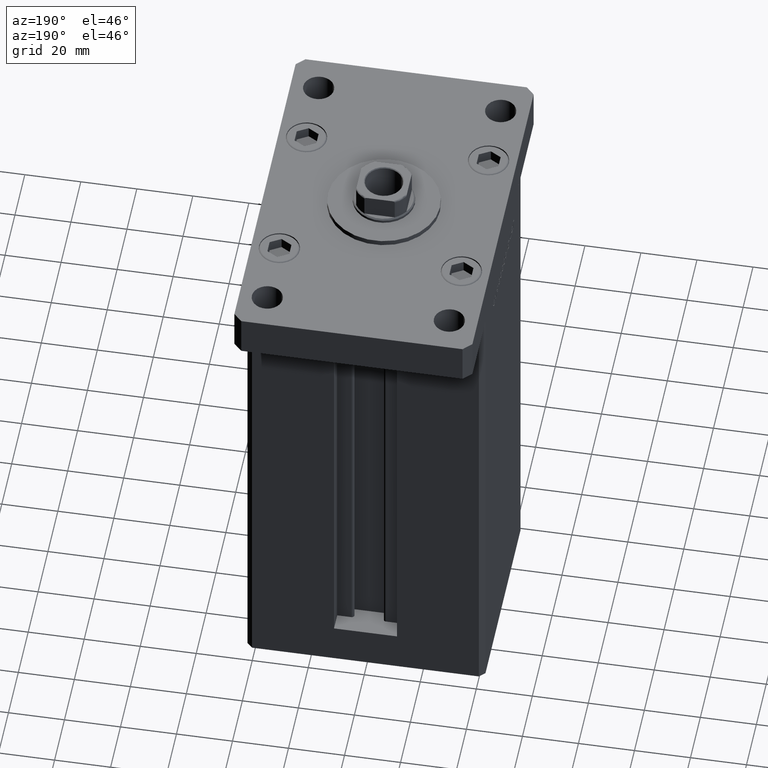
[diagram: clean part render]
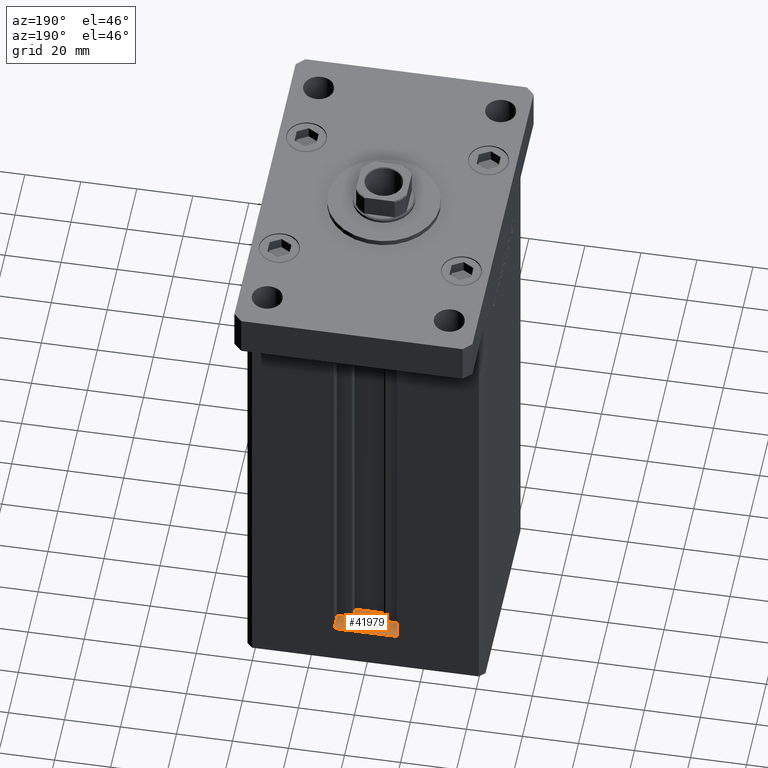
[diagram: same view with one face highlighted and labeled with its STEP entity id]
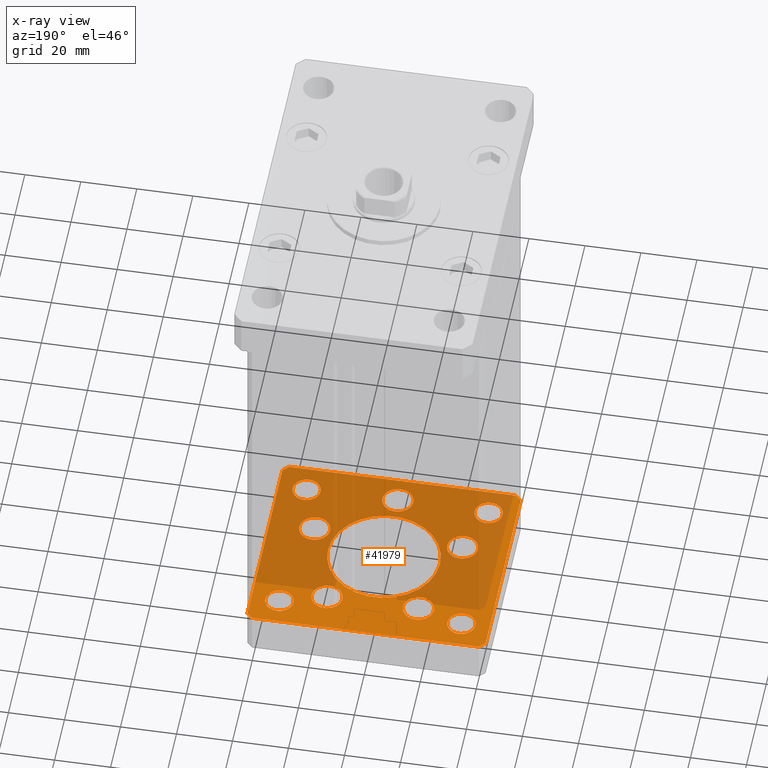
[diagram: x-ray of the same camera — body ghosted, the highlighted face saturated]
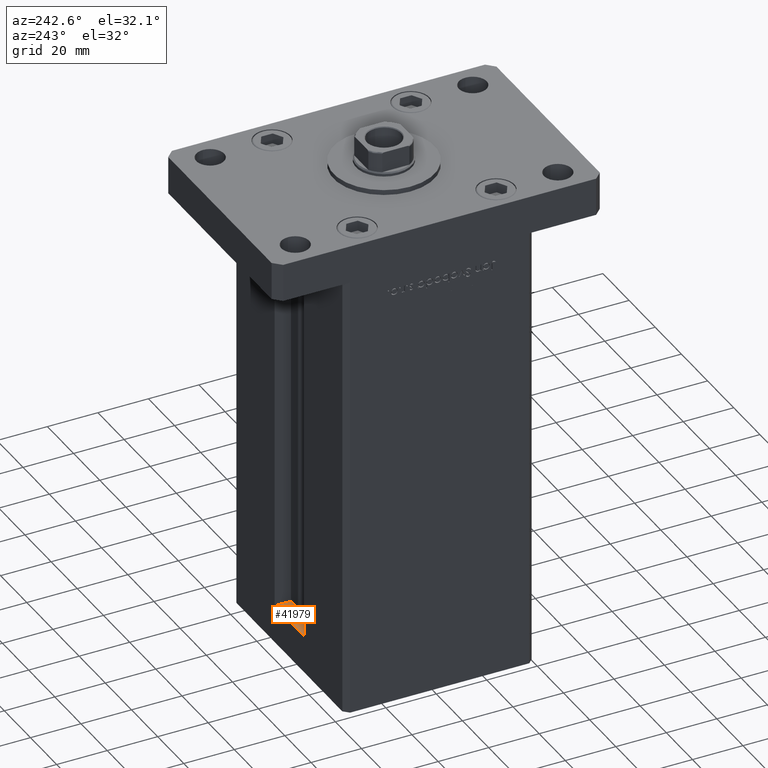
[diagram: same view with one face highlighted and labeled with its STEP entity id]
A machine part, auxiliary view. The second image highlights one B-rep face of the part: STEP entity #41979.
The next image is the same camera in x-ray: the body ghosted, the highlighted face saturated — about 68% of this face is hidden behind the body in this view.
A second angle (auxiliary view) of the same face is appended — the face is thin or edge-on in the first view.
In plain terms, the highlighted planar face has unit normal (0, 0, -1).
Its self-contained STEP definition (entity closure, byte-faithful):
#45 = DIRECTION ( 'NONE',  ( 1.000000000000000000, 0.000000000000000000, 0.000000000000000000 ) ) ;
#463 = VECTOR ( 'NONE', #32890, 1000.000000000000000 ) ;
#609 = CARTESIAN_POINT ( 'NONE',  ( 40.49999999999991473, 37.50000000000000711, -15.00000000000000000 ) ) ;
#1001 = DIRECTION ( 'NONE',  ( 0.000000000000000000, -0.000000000000000000, -1.000000000000000000 ) ) ;
#1236 = VERTEX_POINT ( 'NONE', #27809 ) ;
#1262 = VERTEX_POINT ( 'NONE', #36219 ) ;
#1341 = CIRCLE ( 'NONE', #52407, 4.999999999999997335 ) ;
#1360 = DIRECTION ( 'NONE',  ( 0.000000000000000000, -0.000000000000000000, -1.000000000000000000 ) ) ;
#1511 = EDGE_CURVE ( 'NONE', #15772, #45604, #25926, .T. ) ;
#1653 = DIRECTION ( 'NONE',  ( 9.773090005503140331E-17, -1.000000000000000000, 0.000000000000000000 ) ) ;
#1685 = FACE_OUTER_BOUND ( 'NONE', #51312, .T. ) ;
#1842 = AXIS2_PLACEMENT_3D ( 'NONE', #50079, #1001, #50338 ) ;
#1948 = FACE_BOUND ( 'NONE', #39887, .T. ) ;
#2063 = ORIENTED_EDGE ( 'NONE', *, *, #46813, .F. ) ;
#2093 = EDGE_LOOP ( 'NONE', ( #27340, #2248 ) ) ;
#2118 = EDGE_CURVE ( 'NONE', #11091, #19289, #32029, .T. ) ;
#2248 = ORIENTED_EDGE ( 'NONE', *, *, #4916, .F. ) ;
#2335 = AXIS2_PLACEMENT_3D ( 'NONE', #34175, #1360, #30641 ) ;
#2701 = DIRECTION ( 'NONE',  ( 1.000000000000000000, 0.000000000000000000, 0.000000000000000000 ) ) ;
#2919 = VERTEX_POINT ( 'NONE', #42880 ) ;
#3134 = VERTEX_POINT ( 'NONE', #16542 ) ;
#3207 = DIRECTION ( 'NONE',  ( 0.000000000000000000, 0.000000000000000000, 1.000000000000000000 ) ) ;
#3214 = ORIENTED_EDGE ( 'NONE', *, *, #22519, .F. ) ;
#3546 = AXIS2_PLACEMENT_3D ( 'NONE', #11108, #15434, #2701 ) ;
#3640 = DIRECTION ( 'NONE',  ( 0.000000000000000000, 0.000000000000000000, 1.000000000000000000 ) ) ;
#3714 = ORIENTED_EDGE ( 'NONE', *, *, #20424, .F. ) ;
#3745 = CIRCLE ( 'NONE', #8206, 5.000000000000000888 ) ;
#3778 = DIRECTION ( 'NONE',  ( 1.000000000000000000, 0.000000000000000000, 0.000000000000000000 ) ) ;
#3962 = CIRCLE ( 'NONE', #34247, 5.500000000000001776 ) ;
#4052 = DIRECTION ( 'NONE',  ( 0.000000000000000000, -0.000000000000000000, -1.000000000000000000 ) ) ;
#4135 = ORIENTED_EDGE ( 'NONE', *, *, #32211, .F. ) ;
#4422 = DIRECTION ( 'NONE',  ( -1.000000000000000000, -3.426614273534436165E-16, 0.000000000000000000 ) ) ;
#4470 = CIRCLE ( 'NONE', #18302, 4.999999999999997335 ) ;
#4708 = VERTEX_POINT ( 'NONE', #17617 ) ;
#4916 = EDGE_CURVE ( 'NONE', #6548, #25707, #18232, .T. ) ;
#4924 = DIRECTION ( 'NONE',  ( 0.000000000000000000, -0.000000000000000000, -1.000000000000000000 ) ) ;
#5157 = CARTESIAN_POINT ( 'NONE',  ( 21.82291334290542650, 22.75000000000000000, -15.00000000000000000 ) ) ;
#5181 = DIRECTION ( 'NONE',  ( 0.000000000000000000, -0.000000000000000000, -1.000000000000000000 ) ) ;
#5273 = ORIENTED_EDGE ( 'NONE', *, *, #33752, .F. ) ;
#5285 = DIRECTION ( 'NONE',  ( 0.000000000000000000, -0.000000000000000000, -1.000000000000000000 ) ) ;
#5337 = DIRECTION ( 'NONE',  ( 0.7071067811865463515, -0.7071067811865487940, 0.000000000000000000 ) ) ;
#5522 = CIRCLE ( 'NONE', #28004, 5.000000000000000888 ) ;
#5847 = DIRECTION ( 'NONE',  ( 1.000000000000000000, 1.713307136767217096E-16, 0.000000000000000000 ) ) ;
#5976 = DIRECTION ( 'NONE',  ( 1.000000000000000000, 0.000000000000000000, 0.000000000000000000 ) ) ;
#6149 = EDGE_LOOP ( 'NONE', ( #53526, #38176 ) ) ;
#6398 = DIRECTION ( 'NONE',  ( -1.000000000000000000, 0.000000000000000000, 0.000000000000000000 ) ) ;
#6415 = EDGE_LOOP ( 'NONE', ( #29234, #31128 ) ) ;
#6548 = VERTEX_POINT ( 'NONE', #37783 ) ;
#6576 = FACE_BOUND ( 'NONE', #6149, .T. ) ;
#7111 = EDGE_CURVE ( 'NONE', #29571, #1262, #18037, .T. ) ;
#7415 = VERTEX_POINT ( 'NONE', #14447 ) ;
#7624 = CIRCLE ( 'NONE', #22322, 5.499999999999998224 ) ;
#7795 = EDGE_CURVE ( 'NONE', #2919, #3134, #4470, .T. ) ;
#8184 = AXIS2_PLACEMENT_3D ( 'NONE', #38249, #13320, #29053 ) ;
#8196 = EDGE_CURVE ( 'NONE', #1262, #7415, #27804, .T. ) ;
#8206 = AXIS2_PLACEMENT_3D ( 'NONE', #42938, #27468, #35613 ) ;
#8842 = CARTESIAN_POINT ( 'NONE',  ( -5.499999999999996447, -28.00000000000000000, -15.00000000000000000 ) ) ;
#9046 = CARTESIAN_POINT ( 'NONE',  ( 40.49999999999991473, 37.50000000000000711, -15.00000000000000000 ) ) ;
#9478 = DIRECTION ( 'NONE',  ( 1.000000000000000000, 0.000000000000000000, 0.000000000000000000 ) ) ;
#9549 = EDGE_CURVE ( 'NONE', #41829, #48282, #25274, .T. ) ;
#10119 = CIRCLE ( 'NONE', #2335, 5.500000000000000000 ) ;
#10130 = ORIENTED_EDGE ( 'NONE', *, *, #29059, .F. ) ;
#10165 = CARTESIAN_POINT ( 'NONE',  ( 32.50000000000000000, 27.49999999999999645, -15.00000000000000000 ) ) ;
#10395 = EDGE_LOOP ( 'NONE', ( #5273, #10130 ) ) ;
#10523 = DIRECTION ( 'NONE',  ( -0.7071067811865474617, 0.7071067811865474617, 0.000000000000000000 ) ) ;
#11012 = DIRECTION ( 'NONE',  ( 0.7071067811865474617, 0.7071067811865474617, 0.000000000000000000 ) ) ;
#11091 = VERTEX_POINT ( 'NONE', #5157 ) ;
#11108 = CARTESIAN_POINT ( 'NONE',  ( -16.32291334290543006, 22.74999999999999645, -15.00000000000000000 ) ) ;
#11315 = VERTEX_POINT ( 'NONE', #28681 ) ;
#11525 = EDGE_CURVE ( 'NONE', #28796, #11315, #25235, .T. ) ;
#11663 = VECTOR ( 'NONE', #5337, 1000.000000000000000 ) ;
#12462 = AXIS2_PLACEMENT_3D ( 'NONE', #42316, #5181, #5976 ) ;
#12560 = DIRECTION ( 'NONE',  ( 0.000000000000000000, -0.000000000000000000, -1.000000000000000000 ) ) ;
#12573 = CARTESIAN_POINT ( 'NONE',  ( 32.50000000000000000, -27.49999999999999645, -15.00000000000000000 ) ) ;
#13320 = DIRECTION ( 'NONE',  ( -0.000000000000000000, -0.000000000000000000, -1.000000000000000000 ) ) ;
#13400 = ORIENTED_EDGE ( 'NONE', *, *, #29933, .T. ) ;
#13510 = ORIENTED_EDGE ( 'NONE', *, *, #8196, .F. ) ;
#13670 = CIRCLE ( 'NONE', #24934, 5.000000000000004441 ) ;
#13891 = VERTEX_POINT ( 'NONE', #22195 ) ;
#13895 = FACE_BOUND ( 'NONE', #28188, .T. ) ;
#14407 = AXIS2_PLACEMENT_3D ( 'NONE', #51560, #23090, #34235 ) ;
#14447 = CARTESIAN_POINT ( 'NONE',  ( 42.50000000000000711, -35.50000000000000000, -15.00000000000000000 ) ) ;
#14494 = DIRECTION ( 'NONE',  ( 1.000000000000000000, 0.000000000000000000, 0.000000000000000000 ) ) ;
#14832 = CARTESIAN_POINT ( 'NONE',  ( -20.00000000000000000, 2.449293598294706513E-15, -15.00000000000000000 ) ) ;
#15113 = VERTEX_POINT ( 'NONE', #40043 ) ;
#15307 = VECTOR ( 'NONE', #17545, 1000.000000000000000 ) ;
#15310 = CARTESIAN_POINT ( 'NONE',  ( -26.39865316429776954, -9.333333333333337478, -15.00000000000000000 ) ) ;
#15434 = DIRECTION ( 'NONE',  ( 0.000000000000000000, -0.000000000000000000, -1.000000000000000000 ) ) ;
#15772 = VERTEX_POINT ( 'NONE', #14832 ) ;
#15785 = DIRECTION ( 'NONE',  ( -0.000000000000000000, -0.000000000000000000, -1.000000000000000000 ) ) ;
#15943 = CARTESIAN_POINT ( 'NONE',  ( -40.50000000000000711, 37.49999999999997868, -15.00000000000000000 ) ) ;
#15993 = CIRCLE ( 'NONE', #8184, 5.000000000000004441 ) ;
#16542 = CARTESIAN_POINT ( 'NONE',  ( 27.50000000000000355, 27.49999999999999645, -15.00000000000000000 ) ) ;
#17102 = CARTESIAN_POINT ( 'NONE',  ( 26.39865316429776954, -9.333333333333330373, -15.00000000000000000 ) ) ;
#17545 = DIRECTION ( 'NONE',  ( -0.7071067811865463515, -0.7071067811865487940, 0.000000000000000000 ) ) ;
#17617 = CARTESIAN_POINT ( 'NONE',  ( -27.50000000000000000, 27.50000000000000355, -15.00000000000000000 ) ) ;
#17909 = CARTESIAN_POINT ( 'NONE',  ( 31.89865316429776954, -9.333333333333330373, -15.00000000000000000 ) ) ;
#17989 = CARTESIAN_POINT ( 'NONE',  ( 20.89865316429777309, -9.333333333333330373, -15.00000000000000000 ) ) ;
#18037 = LINE ( 'NONE', #21822, #26081 ) ;
#18226 = FACE_BOUND ( 'NONE', #25171, .T. ) ;
#18232 = CIRCLE ( 'NONE', #3546, 5.500000000000000000 ) ;
#18262 = DIRECTION ( 'NONE',  ( 1.000000000000000000, 0.000000000000000000, 0.000000000000000000 ) ) ;
#18288 = DIRECTION ( 'NONE',  ( 1.000000000000000000, 0.000000000000000000, 0.000000000000000000 ) ) ;
#18302 = AXIS2_PLACEMENT_3D ( 'NONE', #36539, #3207, #52805 ) ;
#18889 = CIRCLE ( 'NONE', #31865, 5.500000000000000000 ) ;
#19197 = VECTOR ( 'NONE', #11012, 1000.000000000000114 ) ;
#19289 = VERTEX_POINT ( 'NONE', #52712 ) ;
#19366 = AXIS2_PLACEMENT_3D ( 'NONE', #17102, #4924, #42065 ) ;
#19992 = LINE ( 'NONE', #31953, #30705 ) ;
#20128 = LINE ( 'NONE', #41834, #463 ) ;
#20375 = CARTESIAN_POINT ( 'NONE',  ( 32.50000000000000000, -27.49999999999999645, -15.00000000000000000 ) ) ;
#20424 = EDGE_CURVE ( 'NONE', #51998, #15113, #15993, .T. ) ;
#20651 = ORIENTED_EDGE ( 'NONE', *, *, #2118, .F. ) ;
#21791 = DIRECTION ( 'NONE',  ( 1.000000000000000000, 0.000000000000000000, 0.000000000000000000 ) ) ;
#21822 = CARTESIAN_POINT ( 'NONE',  ( -40.49999999999999289, -37.50000000000002132, -15.00000000000000000 ) ) ;
#21867 = VERTEX_POINT ( 'NONE', #32490 ) ;
#22107 = LINE ( 'NONE', #42211, #11663 ) ;
#22195 = CARTESIAN_POINT ( 'NONE',  ( -20.89865316429777309, -9.333333333333337478, -15.00000000000000000 ) ) ;
#22281 = FACE_BOUND ( 'NONE', #2093, .T. ) ;
#22322 = AXIS2_PLACEMENT_3D ( 'NONE', #15310, #47566, #14494 ) ;
#22519 = EDGE_CURVE ( 'NONE', #7415, #21867, #20128, .T. ) ;
#22945 = EDGE_LOOP ( 'NONE', ( #23659, #50291 ) ) ;
#23090 = DIRECTION ( 'NONE',  ( -0.000000000000000000, 0.000000000000000000, 1.000000000000000000 ) ) ;
#23193 = EDGE_CURVE ( 'NONE', #19289, #11091, #3962, .T. ) ;
#23435 = EDGE_CURVE ( 'NONE', #36980, #25960, #1341, .T. ) ;
#23659 = ORIENTED_EDGE ( 'NONE', *, *, #7795, .T. ) ;
#24129 = AXIS2_PLACEMENT_3D ( 'NONE', #20375, #15785, #32068 ) ;
#24851 = EDGE_LOOP ( 'NONE', ( #33548, #13400 ) ) ;
#24934 = AXIS2_PLACEMENT_3D ( 'NONE', #47320, #47062, #6398 ) ;
#25171 = EDGE_LOOP ( 'NONE', ( #2063, #3714 ) ) ;
#25235 = CIRCLE ( 'NONE', #1842, 5.500000000000000000 ) ;
#25274 = LINE ( 'NONE', #609, #52134 ) ;
#25397 = CIRCLE ( 'NONE', #52222, 5.499999999999998224 ) ;
#25707 = VERTEX_POINT ( 'NONE', #48960 ) ;
#25926 = CIRCLE ( 'NONE', #42399, 20.00000000000000000 ) ;
#25960 = VERTEX_POINT ( 'NONE', #38021 ) ;
#26081 = VECTOR ( 'NONE', #5847, 1000.000000000000000 ) ;
#27225 = LINE ( 'NONE', #51896, #15307 ) ;
#27340 = ORIENTED_EDGE ( 'NONE', *, *, #43059, .F. ) ;
#27468 = DIRECTION ( 'NONE',  ( 0.000000000000000000, 0.000000000000000000, 1.000000000000000000 ) ) ;
#27804 = LINE ( 'NONE', #44339, #19197 ) ;
#27809 = CARTESIAN_POINT ( 'NONE',  ( -42.50000000000000000, -35.50000000000000711, -15.00000000000000000 ) ) ;
#28004 = AXIS2_PLACEMENT_3D ( 'NONE', #32113, #3640, #52970 ) ;
#28188 = EDGE_LOOP ( 'NONE', ( #52461, #29660 ) ) ;
#28283 = DIRECTION ( 'NONE',  ( 1.000000000000000000, 0.000000000000000000, 0.000000000000000000 ) ) ;
#28681 = CARTESIAN_POINT ( 'NONE',  ( 5.500000000000003553, -28.00000000000000000, -15.00000000000000000 ) ) ;
#28780 = CARTESIAN_POINT ( 'NONE',  ( 3.429011037612589276E-15, -28.00000000000000000, -15.00000000000000000 ) ) ;
#28796 = VERTEX_POINT ( 'NONE', #8842 ) ;
#28827 = DIRECTION ( 'NONE',  ( -0.000000000000000000, -0.000000000000000000, -1.000000000000000000 ) ) ;
#29053 = DIRECTION ( 'NONE',  ( -1.000000000000000000, 0.000000000000000000, 0.000000000000000000 ) ) ;
#29059 = EDGE_CURVE ( 'NONE', #37058, #50370, #49679, .T. ) ;
#29234 = ORIENTED_EDGE ( 'NONE', *, *, #51676, .F. ) ;
#29571 = VERTEX_POINT ( 'NONE', #34092 ) ;
#29660 = ORIENTED_EDGE ( 'NONE', *, *, #30105, .F. ) ;
#29933 = EDGE_CURVE ( 'NONE', #47817, #4708, #5522, .T. ) ;
#30071 = CARTESIAN_POINT ( 'NONE',  ( 16.32291334290542295, 22.75000000000000000, -15.00000000000000000 ) ) ;
#30105 = EDGE_CURVE ( 'NONE', #30548, #13891, #32348, .T. ) ;
#30548 = VERTEX_POINT ( 'NONE', #53311 ) ;
#30641 = DIRECTION ( 'NONE',  ( 1.000000000000000000, 0.000000000000000000, 0.000000000000000000 ) ) ;
#30705 = VECTOR ( 'NONE', #1653, 1000.000000000000000 ) ;
#30765 = DIRECTION ( 'NONE',  ( 0.000000000000000000, 0.000000000000000000, 1.000000000000000000 ) ) ;
#30772 = ORIENTED_EDGE ( 'NONE', *, *, #7111, .F. ) ;
#30914 = ORIENTED_EDGE ( 'NONE', *, *, #52121, .F. ) ;
#31128 = ORIENTED_EDGE ( 'NONE', *, *, #1511, .F. ) ;
#31236 = FACE_BOUND ( 'NONE', #24851, .T. ) ;
#31244 = CARTESIAN_POINT ( 'NONE',  ( -42.50000000000000711, 35.49999999999997158, -15.00000000000000000 ) ) ;
#31255 = ORIENTED_EDGE ( 'NONE', *, *, #9549, .F. ) ;
#31865 = AXIS2_PLACEMENT_3D ( 'NONE', #28780, #32326, #45 ) ;
#31953 = CARTESIAN_POINT ( 'NONE',  ( -42.50000000000000711, 35.49999999999997158, -15.00000000000000000 ) ) ;
#32029 = CIRCLE ( 'NONE', #46721, 5.500000000000001776 ) ;
#32068 = DIRECTION ( 'NONE',  ( -1.000000000000000000, 0.000000000000000000, 0.000000000000000000 ) ) ;
#32113 = CARTESIAN_POINT ( 'NONE',  ( -32.50000000000000000, 27.50000000000000355, -15.00000000000000000 ) ) ;
#32211 = EDGE_CURVE ( 'NONE', #1236, #29571, #22107, .T. ) ;
#32326 = DIRECTION ( 'NONE',  ( 0.000000000000000000, -0.000000000000000000, -1.000000000000000000 ) ) ;
#32348 = CIRCLE ( 'NONE', #12462, 5.499999999999998224 ) ;
#32490 = CARTESIAN_POINT ( 'NONE',  ( 42.49999999999992895, 35.50000000000000000, -15.00000000000000000 ) ) ;
#32691 = EDGE_CURVE ( 'NONE', #4708, #47817, #3745, .T. ) ;
#32755 = VECTOR ( 'NONE', #10523, 1000.000000000000114 ) ;
#32890 = DIRECTION ( 'NONE',  ( -1.172770800660376741E-15, 1.000000000000000000, 0.000000000000000000 ) ) ;
#33548 = ORIENTED_EDGE ( 'NONE', *, *, #32691, .T. ) ;
#33752 = EDGE_CURVE ( 'NONE', #50370, #37058, #25397, .T. ) ;
#34092 = CARTESIAN_POINT ( 'NONE',  ( -40.49999999999999289, -37.50000000000002132, -15.00000000000000000 ) ) ;
#34175 = CARTESIAN_POINT ( 'NONE',  ( -16.32291334290543006, 22.74999999999999645, -15.00000000000000000 ) ) ;
#34235 = DIRECTION ( 'NONE',  ( 1.000000000000000000, 0.000000000000000000, 0.000000000000000000 ) ) ;
#34247 = AXIS2_PLACEMENT_3D ( 'NONE', #35088, #38617, #21791 ) ;
#34275 = CARTESIAN_POINT ( 'NONE',  ( -37.50000000000000711, 27.50000000000000355, -15.00000000000000000 ) ) ;
#34768 = FACE_BOUND ( 'NONE', #22945, .T. ) ;
#35088 = CARTESIAN_POINT ( 'NONE',  ( 16.32291334290542295, 22.75000000000000000, -15.00000000000000000 ) ) ;
#35613 = DIRECTION ( 'NONE',  ( 1.000000000000000000, 0.000000000000000000, 0.000000000000000000 ) ) ;
#36153 = EDGE_LOOP ( 'NONE', ( #20651, #42493 ) ) ;
#36203 = CIRCLE ( 'NONE', #51787, 20.00000000000000000 ) ;
#36219 = CARTESIAN_POINT ( 'NONE',  ( 40.50000000000000000, -37.50000000000000711, -15.00000000000000000 ) ) ;
#36539 = CARTESIAN_POINT ( 'NONE',  ( 32.50000000000000000, 27.49999999999999645, -15.00000000000000000 ) ) ;
#36980 = VERTEX_POINT ( 'NONE', #44876 ) ;
#37058 = VERTEX_POINT ( 'NONE', #17989 ) ;
#37308 = EDGE_CURVE ( 'NONE', #49227, #1236, #19992, .T. ) ;
#37783 = CARTESIAN_POINT ( 'NONE',  ( -21.82291334290543361, 22.74999999999999645, -15.00000000000000000 ) ) ;
#37977 = CIRCLE ( 'NONE', #24129, 4.999999999999997335 ) ;
#38021 = CARTESIAN_POINT ( 'NONE',  ( 37.50000000000000000, -27.49999999999999645, -15.00000000000000000 ) ) ;
#38176 = ORIENTED_EDGE ( 'NONE', *, *, #23435, .F. ) ;
#38249 = CARTESIAN_POINT ( 'NONE',  ( -32.50000000000000000, -27.49999999999999645, -15.00000000000000000 ) ) ;
#38428 = CARTESIAN_POINT ( 'NONE',  ( 20.00000000000000000, 0.000000000000000000, -15.00000000000000000 ) ) ;
#38617 = DIRECTION ( 'NONE',  ( 0.000000000000000000, -0.000000000000000000, -1.000000000000000000 ) ) ;
#38840 = FACE_BOUND ( 'NONE', #36153, .T. ) ;
#39376 = PLANE ( 'NONE',  #14407 ) ;
#39535 = CARTESIAN_POINT ( 'NONE',  ( 42.49999999999992895, 35.50000000000000000, -15.00000000000000000 ) ) ;
#39887 = EDGE_LOOP ( 'NONE', ( #30914, #52296 ) ) ;
#40043 = CARTESIAN_POINT ( 'NONE',  ( -27.50000000000000000, -27.49999999999999645, -15.00000000000000000 ) ) ;
#40196 = CARTESIAN_POINT ( 'NONE',  ( -37.50000000000000711, -27.49999999999999645, -15.00000000000000000 ) ) ;
#40924 = CARTESIAN_POINT ( 'NONE',  ( 0.000000000000000000, 0.000000000000000000, -15.00000000000000000 ) ) ;
#41671 = EDGE_CURVE ( 'NONE', #48282, #49227, #27225, .T. ) ;
#41829 = VERTEX_POINT ( 'NONE', #9046 ) ;
#41834 = CARTESIAN_POINT ( 'NONE',  ( 42.50000000000000711, -35.50000000000000000, -15.00000000000000000 ) ) ;
#41979 = ADVANCED_FACE ( 'NONE', ( #51838, #13895, #1948, #42636, #38840, #22281, #34768, #31236, #1685, #6576, #18226 ), #39376, .F. ) ;
#42065 = DIRECTION ( 'NONE',  ( 1.000000000000000000, 0.000000000000000000, 0.000000000000000000 ) ) ;
#42211 = CARTESIAN_POINT ( 'NONE',  ( -42.50000000000000000, -35.50000000000000711, -15.00000000000000000 ) ) ;
#42289 = DIRECTION ( 'NONE',  ( 0.000000000000000000, -0.000000000000000000, -1.000000000000000000 ) ) ;
#42316 = CARTESIAN_POINT ( 'NONE',  ( -26.39865316429776954, -9.333333333333337478, -15.00000000000000000 ) ) ;
#42399 = AXIS2_PLACEMENT_3D ( 'NONE', #46740, #5285, #18262 ) ;
#42493 = ORIENTED_EDGE ( 'NONE', *, *, #23193, .F. ) ;
#42636 = FACE_BOUND ( 'NONE', #10395, .T. ) ;
#42880 = CARTESIAN_POINT ( 'NONE',  ( 37.50000000000000000, 27.49999999999999645, -15.00000000000000000 ) ) ;
#42938 = CARTESIAN_POINT ( 'NONE',  ( -32.50000000000000000, 27.50000000000000355, -15.00000000000000000 ) ) ;
#43059 = EDGE_CURVE ( 'NONE', #25707, #6548, #10119, .T. ) ;
#43915 = ORIENTED_EDGE ( 'NONE', *, *, #37308, .F. ) ;
#44092 = ORIENTED_EDGE ( 'NONE', *, *, #50772, .F. ) ;
#44339 = CARTESIAN_POINT ( 'NONE',  ( 40.50000000000000000, -37.50000000000000711, -15.00000000000000000 ) ) ;
#44835 = AXIS2_PLACEMENT_3D ( 'NONE', #10165, #30765, #18288 ) ;
#44876 = CARTESIAN_POINT ( 'NONE',  ( 27.50000000000000355, -27.49999999999999645, -15.00000000000000000 ) ) ;
#45604 = VERTEX_POINT ( 'NONE', #38428 ) ;
#46021 = EDGE_CURVE ( 'NONE', #3134, #2919, #48318, .T. ) ;
#46052 = EDGE_CURVE ( 'NONE', #13891, #30548, #7624, .T. ) ;
#46163 = DIRECTION ( 'NONE',  ( -1.000000000000000000, 0.000000000000000000, 0.000000000000000000 ) ) ;
#46721 = AXIS2_PLACEMENT_3D ( 'NONE', #30071, #42289, #9478 ) ;
#46740 = CARTESIAN_POINT ( 'NONE',  ( 0.000000000000000000, 0.000000000000000000, -15.00000000000000000 ) ) ;
#46813 = EDGE_CURVE ( 'NONE', #15113, #51998, #13670, .T. ) ;
#47062 = DIRECTION ( 'NONE',  ( -0.000000000000000000, -0.000000000000000000, -1.000000000000000000 ) ) ;
#47320 = CARTESIAN_POINT ( 'NONE',  ( -32.50000000000000000, -27.49999999999999645, -15.00000000000000000 ) ) ;
#47566 = DIRECTION ( 'NONE',  ( 0.000000000000000000, -0.000000000000000000, -1.000000000000000000 ) ) ;
#47817 = VERTEX_POINT ( 'NONE', #34275 ) ;
#48282 = VERTEX_POINT ( 'NONE', #15943 ) ;
#48318 = CIRCLE ( 'NONE', #44835, 4.999999999999997335 ) ;
#48476 = LINE ( 'NONE', #39535, #32755 ) ;
#48694 = EDGE_CURVE ( 'NONE', #25960, #36980, #37977, .T. ) ;
#48960 = CARTESIAN_POINT ( 'NONE',  ( -10.82291334290543183, 22.74999999999999645, -15.00000000000000000 ) ) ;
#49227 = VERTEX_POINT ( 'NONE', #31244 ) ;
#49679 = CIRCLE ( 'NONE', #19366, 5.499999999999998224 ) ;
#50079 = CARTESIAN_POINT ( 'NONE',  ( 3.429011037612589276E-15, -28.00000000000000000, -15.00000000000000000 ) ) ;
#50291 = ORIENTED_EDGE ( 'NONE', *, *, #46021, .T. ) ;
#50338 = DIRECTION ( 'NONE',  ( 1.000000000000000000, 0.000000000000000000, 0.000000000000000000 ) ) ;
#50370 = VERTEX_POINT ( 'NONE', #17909 ) ;
#50772 = EDGE_CURVE ( 'NONE', #21867, #41829, #48476, .T. ) ;
#51312 = EDGE_LOOP ( 'NONE', ( #4135, #43915, #52675, #31255, #44092, #3214, #13510, #30772 ) ) ;
#51560 = CARTESIAN_POINT ( 'NONE',  ( 0.000000000000000000, 0.000000000000000000, -15.00000000000000000 ) ) ;
#51676 = EDGE_CURVE ( 'NONE', #45604, #15772, #36203, .T. ) ;
#51787 = AXIS2_PLACEMENT_3D ( 'NONE', #40924, #4052, #3778 ) ;
#51838 = FACE_BOUND ( 'NONE', #6415, .T. ) ;
#51896 = CARTESIAN_POINT ( 'NONE',  ( -40.50000000000000711, 37.49999999999997868, -15.00000000000000000 ) ) ;
#51998 = VERTEX_POINT ( 'NONE', #40196 ) ;
#52121 = EDGE_CURVE ( 'NONE', #11315, #28796, #18889, .T. ) ;
#52134 = VECTOR ( 'NONE', #4422, 1000.000000000000000 ) ;
#52222 = AXIS2_PLACEMENT_3D ( 'NONE', #52689, #12560, #28283 ) ;
#52296 = ORIENTED_EDGE ( 'NONE', *, *, #11525, .F. ) ;
#52407 = AXIS2_PLACEMENT_3D ( 'NONE', #12573, #28827, #46163 ) ;
#52461 = ORIENTED_EDGE ( 'NONE', *, *, #46052, .F. ) ;
#52675 = ORIENTED_EDGE ( 'NONE', *, *, #41671, .F. ) ;
#52689 = CARTESIAN_POINT ( 'NONE',  ( 26.39865316429776954, -9.333333333333330373, -15.00000000000000000 ) ) ;
#52712 = CARTESIAN_POINT ( 'NONE',  ( 10.82291334290542473, 22.75000000000000000, -15.00000000000000000 ) ) ;
#52805 = DIRECTION ( 'NONE',  ( 1.000000000000000000, 0.000000000000000000, 0.000000000000000000 ) ) ;
#52970 = DIRECTION ( 'NONE',  ( 1.000000000000000000, 0.000000000000000000, 0.000000000000000000 ) ) ;
#53311 = CARTESIAN_POINT ( 'NONE',  ( -31.89865316429776954, -9.333333333333337478, -15.00000000000000000 ) ) ;
#53526 = ORIENTED_EDGE ( 'NONE', *, *, #48694, .F. ) ;